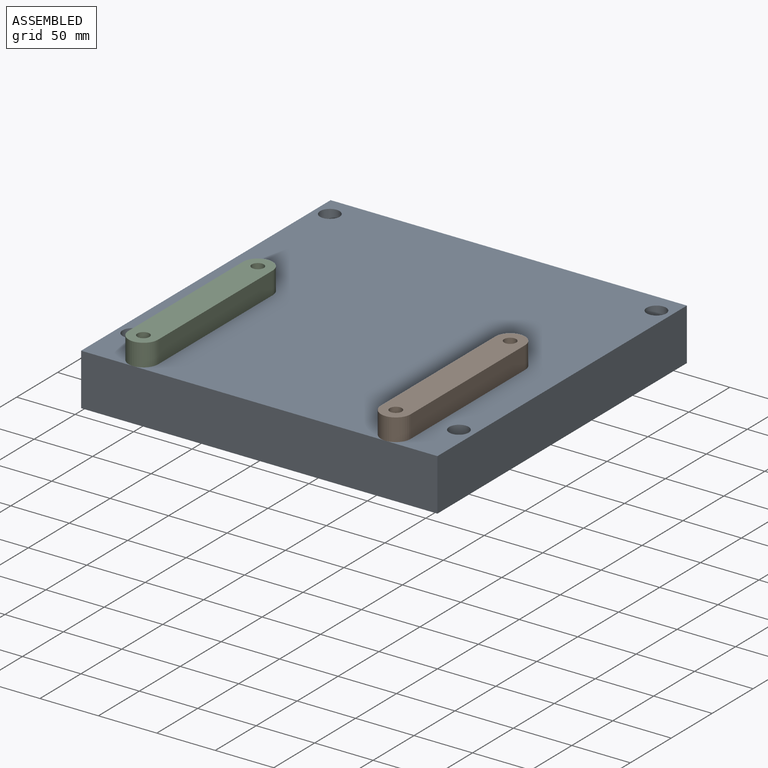
[diagram: assembled view]
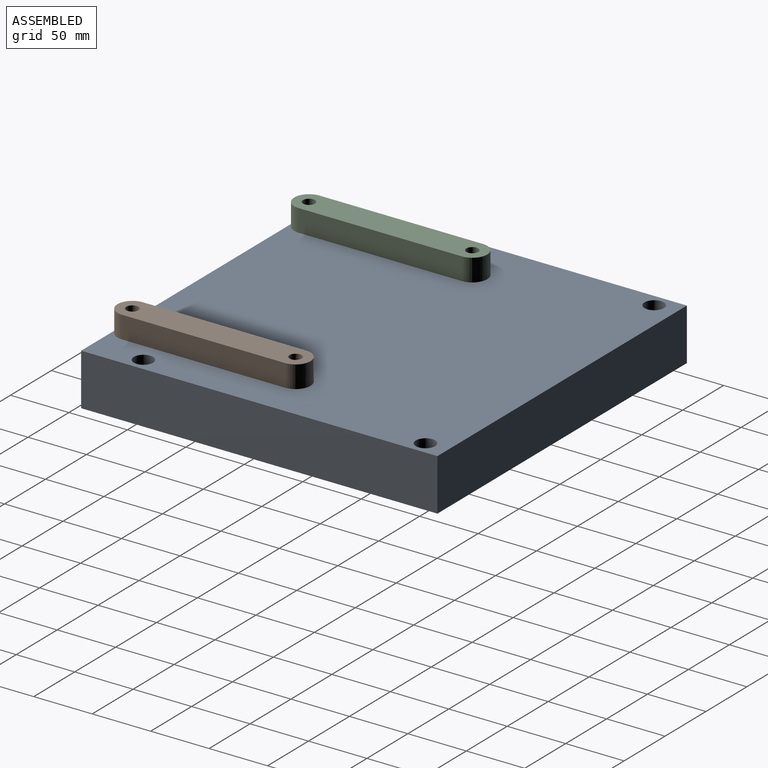
[diagram: assembled view, second angle]
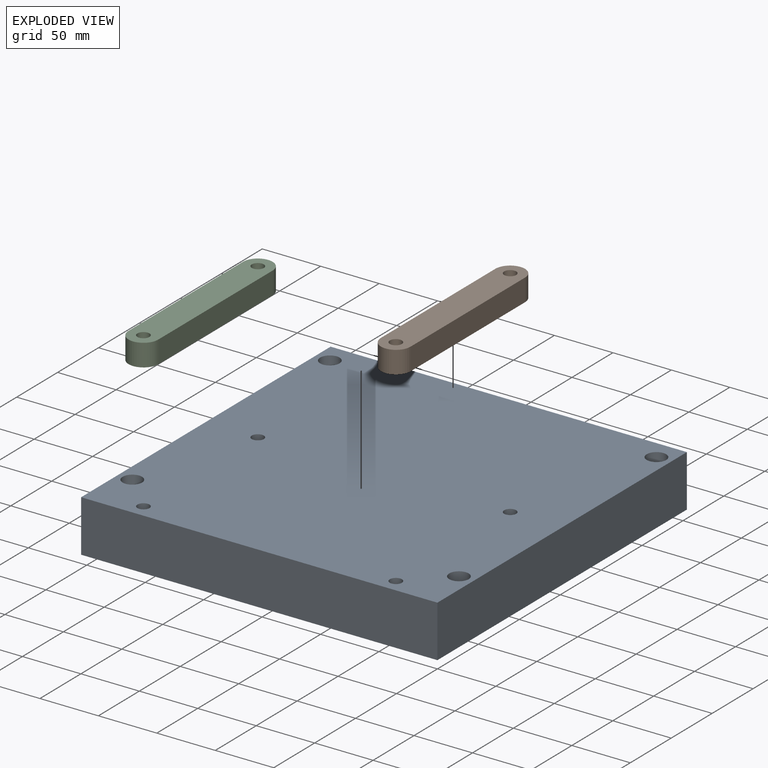
[diagram: exploded view]
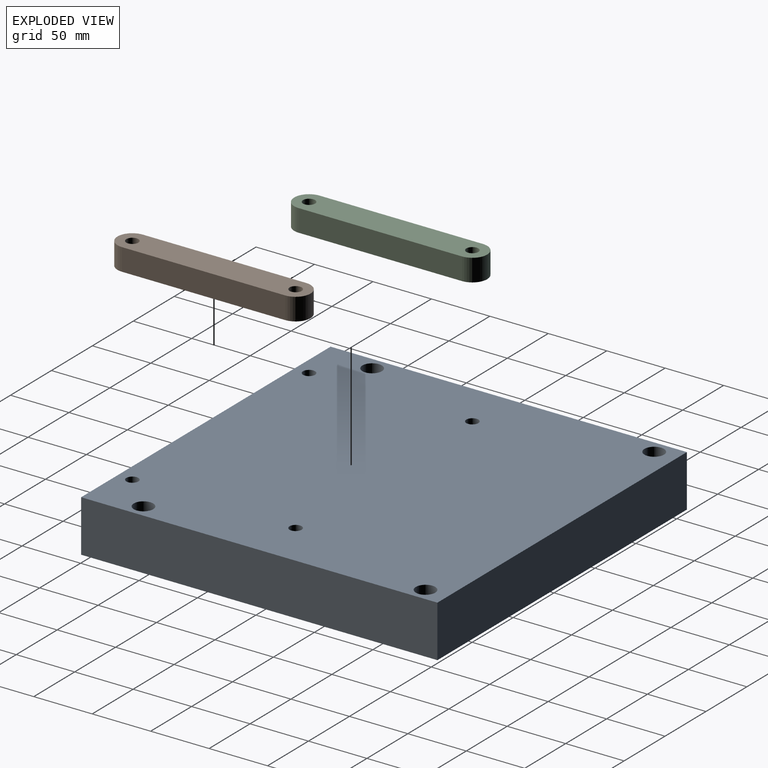
[diagram: exploded view, second angle]
ASSEMBLY  parts=3 mates=2
PART A: 14 faces, bbox 304.8x304.8x44.5 mm
  f0: plane 304.8x44.45mm, normal (1,0,0), area 13548.4mm2, adj f1,f10,f12,f13
  f1: plane 304.8x44.45mm, normal (0,1,0), area 13548.4mm2, adj f0,f2,f12,f13
  f2: plane 304.8x44.45mm, normal (-1,0,0), area 13548.4mm2, adj f1,f10,f12,f13
  f3: cylinder r=5.16mm len=44.45mm, axis (0,0,-1), area 1440.1mm2, adj f12,f13
  f4: cylinder r=5.16mm len=44.45mm, axis (0,0,-1), area 1440.9mm2, adj f12,f13
  f5: cylinder r=5.16mm len=44.45mm, axis (0,0,-1), area 1440.9mm2, adj f12,f13
  f6: cylinder r=8.33mm len=44.45mm, axis (0,0,-1), area 2326.8mm2, adj f12,f13
  f7: cylinder r=8.33mm len=44.45mm, axis (0,0,-1), area 2326.8mm2, adj f12,f13
  f8: cylinder r=8.33mm len=44.45mm, axis (0,0,-1), area 2326.8mm2, adj f12,f13
  f9: cylinder r=8.33mm len=44.45mm, axis (0,0,-1), area 2326.8mm2, adj f12,f13
  f10: plane 304.8x44.45mm, normal (0,-1,0), area 13548.4mm2, adj f0,f2,f12,f13
  f11: cylinder r=5.16mm len=44.45mm, axis (0,0,-1), area 1440.1mm2, adj f12,f13
  f12: plane 304.8x304.8mm, normal (0,0,1), area 91696.5mm2, adj f0,f1,f2,f3,f4,f5,f6,f7
  f13: plane 304.8x304.8mm, normal (0,0,-1), area 91696.5mm2, adj f0,f1,f2,f3,f4,f5,f6,f7
PART B: 8 faces, bbox 25.4x165.1x19.1 mm
  f0: plane 139.7x19.05mm, normal (1,0,0), area 2661.3mm2, adj f1,f5,f6,f7
  f1: cylinder r=12.7mm len=25.4mm, axis (0,0,-1), area 760.1mm2, adj f0,f2,f6,f7
  f2: plane 139.7x19.05mm, normal (-1,0,0), area 2661.3mm2, adj f1,f5,f6,f7
  f3: cylinder r=5.16mm len=19.05mm, axis (0,0,-1), area 617.2mm2, adj f6,f7
  f4: cylinder r=5.16mm len=19.05mm, axis (0,0,-1), area 617.5mm2, adj f6,f7
  f5: cylinder r=12.7mm len=25.4mm, axis (0,0,-1), area 760.1mm2, adj f0,f2,f6,f7
  f6: plane 165.1x25.4mm, normal (0,0,1), area 3887.9mm2, adj f0,f1,f2,f3,f4,f5
  f7: plane 165.1x25.4mm, normal (0,0,-1), area 3887.9mm2, adj f0,f1,f2,f3,f4,f5
PART C: 8 faces, bbox 25.4x165.1x19.1 mm
  f0: plane 139.7x19.05mm, normal (1,0,0), area 2661.3mm2, adj f1,f5,f6,f7
  f1: cylinder r=12.7mm len=25.4mm, axis (0,0,-1), area 760.1mm2, adj f0,f2,f6,f7
  f2: plane 139.7x19.05mm, normal (-1,0,0), area 2661.3mm2, adj f1,f5,f6,f7
  f3: cylinder r=5.16mm len=19.05mm, axis (0,0,-1), area 617.2mm2, adj f6,f7
  f4: cylinder r=5.16mm len=19.05mm, axis (0,0,-1), area 617.5mm2, adj f6,f7
  f5: cylinder r=12.7mm len=25.4mm, axis (0,0,-1), area 760.1mm2, adj f0,f2,f6,f7
  f6: plane 165.1x25.4mm, normal (0,0,1), area 3887.9mm2, adj f0,f1,f2,f3,f4,f5
  f7: plane 165.1x25.4mm, normal (0,0,-1), area 3887.9mm2, adj f0,f1,f2,f3,f4,f5
PLACE A t=(-52.64,-34.56,-47.54)mm
PLACE B t=(-52.64,-34.56,-3.09)mm
PLACE C t=(-52.64,-34.56,-3.09)mm
MATE fastened B.f4 <-> A.f4  axis (0,0,-1) through (55.31,-186.96,-3.09)mm
MATE fastened C.f4 <-> A.f5  axis (0,0,-1) through (-160.59,-186.96,-3.09)mm
